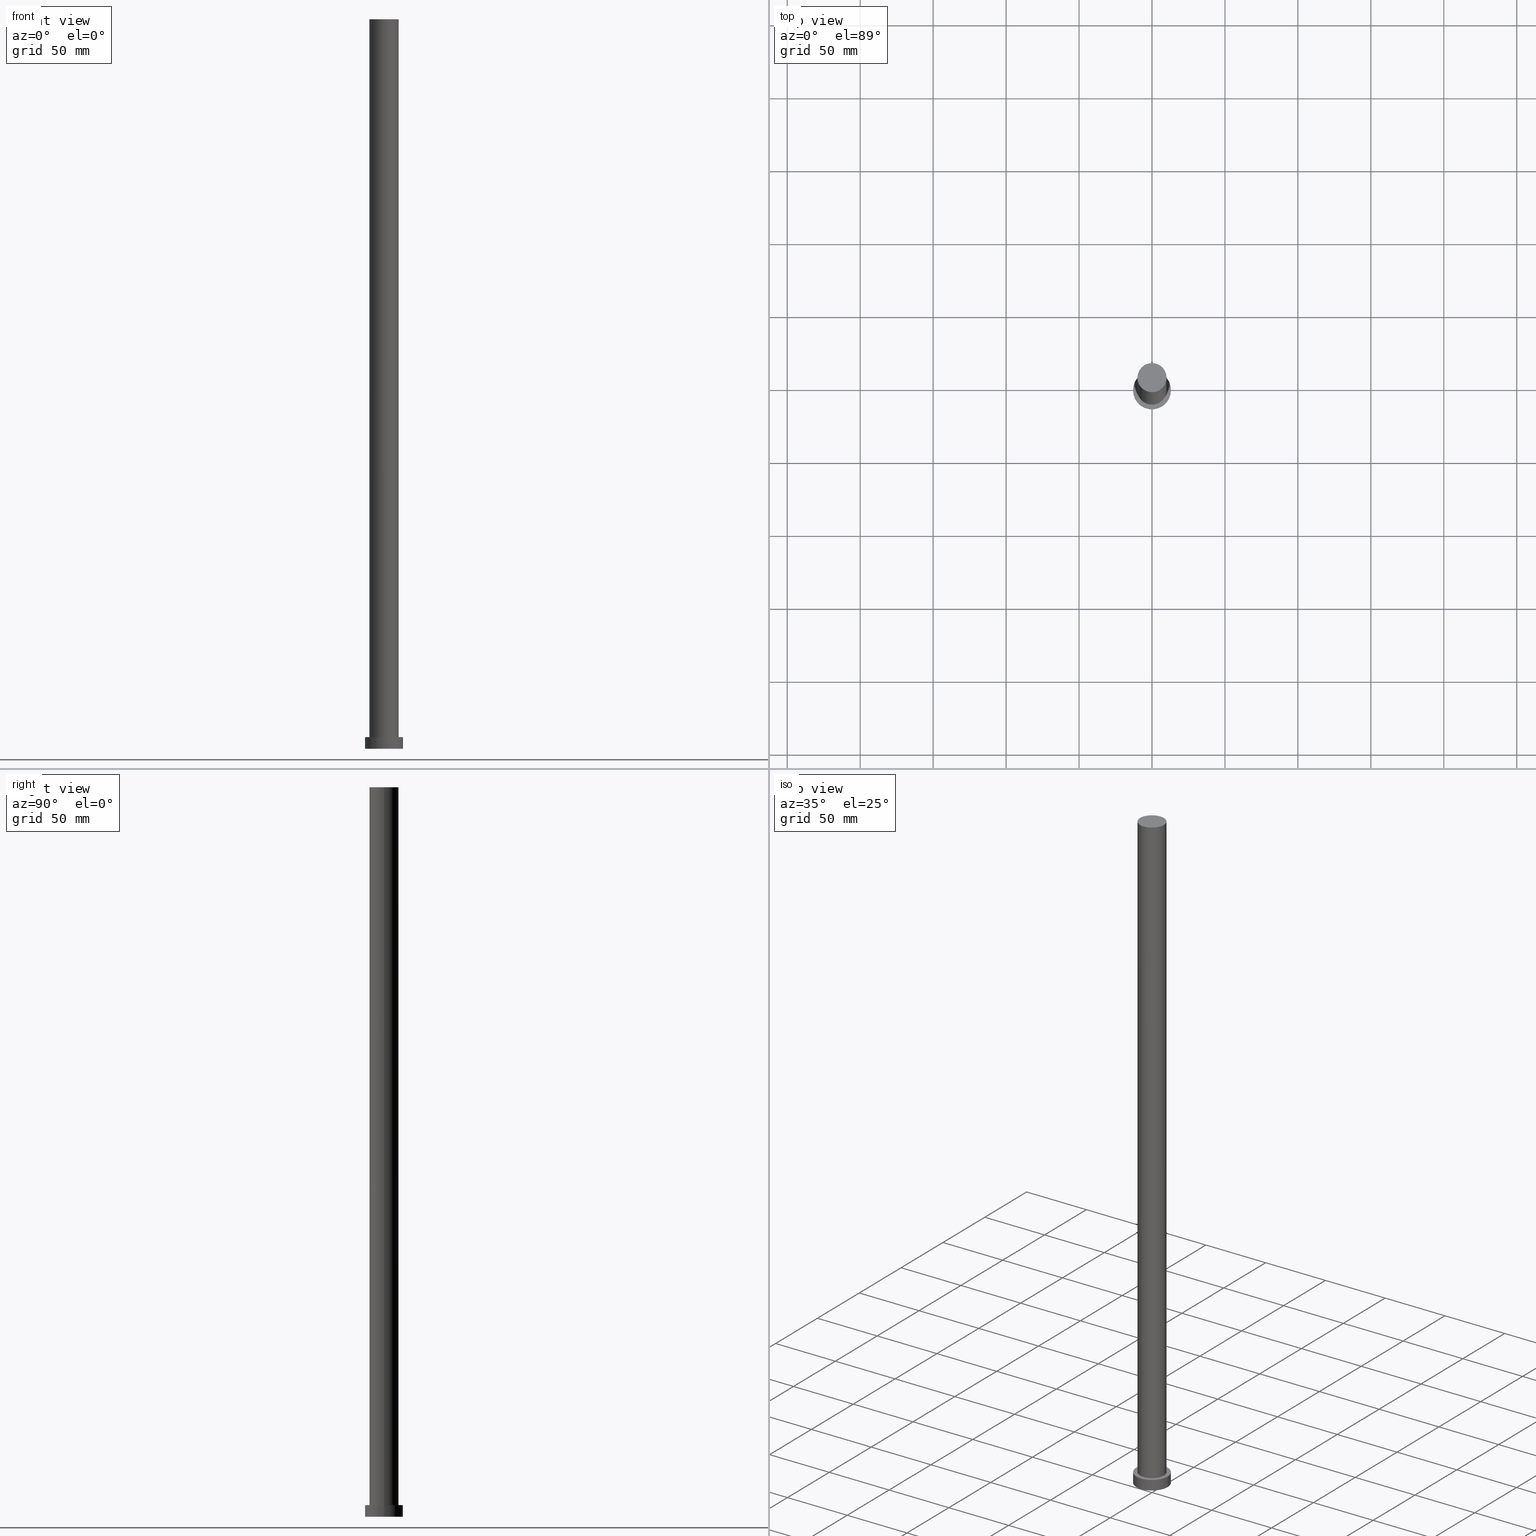
[diagram: canonical four-view strip — front | top / right | iso, engineering-drawing reading convention]
A machine part, canonical four-view strip (front | top / right | iso — engineering-drawing reading convention). The complete STEP part file that produces these views, byte-faithful:
ISO-10303-21;
HEADER;
FILE_DESCRIPTION (( 'STEP AP203' ),
    '1' );
FILE_NAME ('5269.STEP',
    '2023-02-13T07:53:37',
    ( '' ),
    ( '' ),
    'SwSTEP 2.0',
    'SolidWorks 2019',
    '' );
FILE_SCHEMA (( 'CONFIG_CONTROL_DESIGN' ));
ENDSEC;

DATA;
#1 = DIRECTION ( 'NONE',  ( 0.000000000000000000, 0.000000000000000000, 1.000000000000000000 ) ) ;
#2 = COORDINATED_UNIVERSAL_TIME_OFFSET ( 1, 0, .AHEAD. ) ;
#3 = VECTOR ( 'NONE', #120, 1000.000000000000000 ) ;
#4 = CC_DESIGN_PERSON_AND_ORGANIZATION_ASSIGNMENT ( #134, #114, ( #63 ) ) ;
#5 = FACE_OUTER_BOUND ( 'NONE', #209, .T. ) ;
#6 = CALENDAR_DATE ( 2023, 13, 2 ) ;
#7 = PRODUCT_DEFINITION_SHAPE ( 'NONE', 'NONE',  #13 ) ;
#8 = APPROVAL_STATUS ( 'not_yet_approved' ) ;
#9 = CYLINDRICAL_SURFACE ( 'NONE', #197, 13.00000000000000178 ) ;
#10 = DIRECTION ( 'NONE',  ( 1.000000000000000000, 0.000000000000000000, 0.000000000000000000 ) ) ;
#11 =( LENGTH_UNIT ( ) NAMED_UNIT ( * ) SI_UNIT ( .MILLI., .METRE. ) );
#12 = LOCAL_TIME ( 8, 53, 37.00000000000000000, #169 ) ;
#13 = PRODUCT_DEFINITION ( 'NEZN�M�', '', #63, #246 ) ;
#14 = PERSON_AND_ORGANIZATION ( #131, #18 ) ;
#15 = VERTEX_POINT ( 'NONE', #231 ) ;
#16 = CIRCLE ( 'NONE', #51, 10.00000000000000000 ) ;
#17 = EDGE_LOOP ( 'NONE', ( #193, #41, #80, #64 ) ) ;
#18 = ORGANIZATION ( 'NEUR�EN�', 'NEUR�EN�', '' ) ;
#19 = CC_DESIGN_DATE_AND_TIME_ASSIGNMENT ( #217, #72, ( #154 ) ) ;
#20 = EDGE_LOOP ( 'NONE', ( #139, #195 ) ) ;
#21 = ORIENTED_EDGE ( 'NONE', *, *, #151, .T. ) ;
#22 = ADVANCED_FACE ( 'NONE', ( #79 ), #59, .T. ) ;
#23 = CC_DESIGN_APPROVAL ( #165, ( #154 ) ) ;
#24 = DATE_AND_TIME ( #163, #69 ) ;
#25 = CARTESIAN_POINT ( 'NONE',  ( -10.00000000000000000, 0.000000000000000000, 500.0000000000000000 ) ) ;
#26 = DIRECTION ( 'NONE',  ( 1.000000000000000000, 0.000000000000000000, 0.000000000000000000 ) ) ;
#27 = CLOSED_SHELL ( 'NONE', ( #204, #171, #104, #210, #249, #22, #235 ) ) ;
#28 = AXIS2_PLACEMENT_3D ( 'NONE', #33, #175, #77 ) ;
#29 = DIRECTION ( 'NONE',  ( 1.000000000000000000, 0.000000000000000000, 0.000000000000000000 ) ) ;
#30 = CALENDAR_DATE ( 2023, 13, 2 ) ;
#31 = LOCAL_TIME ( 8, 53, 37.00000000000000000, #168 ) ;
#32 = PERSON_AND_ORGANIZATION ( #131, #18 ) ;
#33 = CARTESIAN_POINT ( 'NONE',  ( 0.000000000000000000, 0.000000000000000000, 500.0000000000000000 ) ) ;
#34 = AXIS2_PLACEMENT_3D ( 'NONE', #189, #67, #147 ) ;
#35 = ORIENTED_EDGE ( 'NONE', *, *, #160, .T. ) ;
#36 = DIRECTION ( 'NONE',  ( -1.000000000000000000, 0.000000000000000000, 0.000000000000000000 ) ) ;
#37 = CC_DESIGN_PERSON_AND_ORGANIZATION_ASSIGNMENT ( #106, #182, ( #181 ) ) ;
#38 = VERTEX_POINT ( 'NONE', #173 ) ;
#39 = CARTESIAN_POINT ( 'NONE',  ( 0.000000000000000000, 0.000000000000000000, 500.0000000000000000 ) ) ;
#40 = VECTOR ( 'NONE', #136, 1000.000000000000000 ) ;
#41 = ORIENTED_EDGE ( 'NONE', *, *, #115, .T. ) ;
#42 = EDGE_LOOP ( 'NONE', ( #205, #252, #35, #192 ) ) ;
#43 = DIRECTION ( 'NONE',  ( 0.000000000000000000, 0.000000000000000000, 1.000000000000000000 ) ) ;
#44 = DIRECTION ( 'NONE',  ( 1.000000000000000000, 0.000000000000000000, 0.000000000000000000 ) ) ;
#45 = CARTESIAN_POINT ( 'NONE',  ( 0.000000000000000000, 0.000000000000000000, 500.0000000000000000 ) ) ;
#46 = EDGE_CURVE ( 'NONE', #233, #38, #170, .T. ) ;
#47 = LINE ( 'NONE', #127, #218 ) ;
#48 = CARTESIAN_POINT ( 'NONE',  ( 13.00000000000000178, 1.592040838891559293E-15, 8.000000000000000000 ) ) ;
#49 = DATE_TIME_ROLE ( 'creation_date' ) ;
#50 = CIRCLE ( 'NONE', #253, 10.00000000000000000 ) ;
#51 = AXIS2_PLACEMENT_3D ( 'NONE', #45, #212, #128 ) ;
#52 = CARTESIAN_POINT ( 'NONE',  ( 10.00000000000000000, 1.224646799147353256E-15, 8.000000000000000000 ) ) ;
#53 = APPROVAL_ROLE ( '' ) ;
#54 = APPROVAL_STATUS ( 'not_yet_approved' ) ;
#55 = DIRECTION ( 'NONE',  ( -1.000000000000000000, 0.000000000000000000, 0.000000000000000000 ) ) ;
#56 = ORIENTED_EDGE ( 'NONE', *, *, #186, .T. ) ;
#57 = EDGE_CURVE ( 'NONE', #176, #15, #187, .T. ) ;
#58 = VERTEX_POINT ( 'NONE', #146 ) ;
#59 = CYLINDRICAL_SURFACE ( 'NONE', #236, 10.00000000000000000 ) ;
#60 = CIRCLE ( 'NONE', #121, 13.00000000000000178 ) ;
#61 = EDGE_CURVE ( 'NONE', #15, #176, #60, .T. ) ;
#62 = ORIENTED_EDGE ( 'NONE', *, *, #57, .T. ) ;
#63 = PRODUCT_DEFINITION_FORMATION_WITH_SPECIFIED_SOURCE ( 'LIBOVOLN�', '', #181, .NOT_KNOWN. ) ;
#64 = ORIENTED_EDGE ( 'NONE', *, *, #151, .F. ) ;
#65 = DIRECTION ( 'NONE',  ( 1.000000000000000000, 0.000000000000000000, 0.000000000000000000 ) ) ;
#66 = CC_DESIGN_DATE_AND_TIME_ASSIGNMENT ( #214, #49, ( #13 ) ) ;
#67 = DIRECTION ( 'NONE',  ( 0.000000000000000000, 0.000000000000000000, 1.000000000000000000 ) ) ;
#68 = APPROVAL_DATE_TIME ( #24, #129 ) ;
#69 = LOCAL_TIME ( 8, 53, 37.00000000000000000, #198 ) ;
#70 = CYLINDRICAL_SURFACE ( 'NONE', #194, 10.00000000000000000 ) ;
#71 = PERSON_AND_ORGANIZATION_ROLE ( 'classification_officer' ) ;
#72 = DATE_TIME_ROLE ( 'classification_date' ) ;
#73 = CARTESIAN_POINT ( 'NONE',  ( -10.00000000000000000, 0.000000000000000000, 500.0000000000000000 ) ) ;
#74 = APPROVAL_PERSON_ORGANIZATION ( #14, #165, #53 ) ;
#75 = EDGE_CURVE ( 'NONE', #208, #161, #16, .T. ) ;
#76 = DIRECTION ( 'NONE',  ( 0.000000000000000000, 0.000000000000000000, 1.000000000000000000 ) ) ;
#77 = DIRECTION ( 'NONE',  ( 1.000000000000000000, 0.000000000000000000, -0.000000000000000000 ) ) ;
#78 = DIRECTION ( 'NONE',  ( -0.000000000000000000, -0.000000000000000000, -1.000000000000000000 ) ) ;
#79 = FACE_OUTER_BOUND ( 'NONE', #124, .T. ) ;
#80 = ORIENTED_EDGE ( 'NONE', *, *, #156, .T. ) ;
#81 = CIRCLE ( 'NONE', #153, 10.00000000000000000 ) ;
#82 = ORIENTED_EDGE ( 'NONE', *, *, #57, .F. ) ;
#83 = DIRECTION ( 'NONE',  ( 1.000000000000000000, 0.000000000000000000, 0.000000000000000000 ) ) ;
#84 = CC_DESIGN_PERSON_AND_ORGANIZATION_ASSIGNMENT ( #137, #116, ( #63 ) ) ;
#85 = CYLINDRICAL_SURFACE ( 'NONE', #157, 13.00000000000000178 ) ;
#86 = PLANE ( 'NONE',  #34 ) ;
#87 = LOCAL_TIME ( 8, 53, 37.00000000000000000, #164 ) ;
#88 = APPROVAL_STATUS ( 'not_yet_approved' ) ;
#89 = UNCERTAINTY_MEASURE_WITH_UNIT (LENGTH_MEASURE( 1.000000000000000082E-05 ), #11, 'distance_accuracy_value', 'NONE');
#90 = DIRECTION ( 'NONE',  ( -0.000000000000000000, -0.000000000000000000, -1.000000000000000000 ) ) ;
#91 = CARTESIAN_POINT ( 'NONE',  ( 13.00000000000000178, 1.592040838891559293E-15, 0.000000000000000000 ) ) ;
#92 = APPROVAL_ROLE ( '' ) ;
#93 = FACE_OUTER_BOUND ( 'NONE', #17, .T. ) ;
#94 = APPROVAL_DATE_TIME ( #203, #165 ) ;
#95 = APPLICATION_CONTEXT ( 'configuration controlled 3d designs of mechanical parts and assemblies' ) ;
#96 = SECURITY_CLASSIFICATION_LEVEL ( 'unclassified' ) ;
#97 = PLANE ( 'NONE',  #28 ) ;
#98 = ADVANCED_BREP_SHAPE_REPRESENTATION ( '5269', ( #237, #221 ), #172 ) ;
#99 = DIRECTION ( 'NONE',  ( 0.000000000000000000, 0.000000000000000000, 1.000000000000000000 ) ) ;
#100 = PRODUCT_RELATED_PRODUCT_CATEGORY ( 'detail', '', ( #181 ) ) ;
#101 = CARTESIAN_POINT ( 'NONE',  ( 0.000000000000000000, 0.000000000000000000, 8.000000000000000000 ) ) ;
#102 = ORIENTED_EDGE ( 'NONE', *, *, #254, .T. ) ;
#103 = EDGE_LOOP ( 'NONE', ( #56, #178 ) ) ;
#104 = ADVANCED_FACE ( 'NONE', ( #200 ), #85, .T. ) ;
#105 = PERSON_AND_ORGANIZATION_ROLE ( 'creator' ) ;
#106 = PERSON_AND_ORGANIZATION ( #131, #18 ) ;
#107 = CARTESIAN_POINT ( 'NONE',  ( 0.000000000000000000, 0.000000000000000000, 500.0000000000000000 ) ) ;
#108 = CC_DESIGN_SECURITY_CLASSIFICATION ( #154, ( #63 ) ) ;
#109 = APPLICATION_PROTOCOL_DEFINITION ( 'international standard', 'config_control_design', 1994, #179 ) ;
#110 = DIRECTION ( 'NONE',  ( -0.000000000000000000, -0.000000000000000000, -1.000000000000000000 ) ) ;
#111 = DIRECTION ( 'NONE',  ( -1.000000000000000000, 0.000000000000000000, 0.000000000000000000 ) ) ;
#112 = MECHANICAL_CONTEXT ( 'NONE', #95, 'mechanical' ) ;
#113 = FACE_BOUND ( 'NONE', #20, .T. ) ;
#114 = PERSON_AND_ORGANIZATION_ROLE ( 'design_supplier' ) ;
#115 = EDGE_CURVE ( 'NONE', #208, #207, #47, .T. ) ;
#116 = PERSON_AND_ORGANIZATION_ROLE ( 'creator' ) ;
#117 = DIRECTION ( 'NONE',  ( 0.000000000000000000, 0.000000000000000000, 1.000000000000000000 ) ) ;
#118 = APPROVAL_PERSON_ORGANIZATION ( #184, #129, #238 ) ;
#119 = ORIENTED_EDGE ( 'NONE', *, *, #115, .F. ) ;
#120 = DIRECTION ( 'NONE',  ( -0.000000000000000000, -0.000000000000000000, -1.000000000000000000 ) ) ;
#121 = AXIS2_PLACEMENT_3D ( 'NONE', #224, #1, #44 ) ;
#122 = ORIENTED_EDGE ( 'NONE', *, *, #248, .F. ) ;
#123 = APPROVAL_PERSON_ORGANIZATION ( #185, #135, #92 ) ;
#124 = EDGE_LOOP ( 'NONE', ( #119, #180, #21, #102 ) ) ;
#125 = ORIENTED_EDGE ( 'NONE', *, *, #226, .T. ) ;
#126 = LOCAL_TIME ( 8, 53, 37.00000000000000000, #2 ) ;
#127 = CARTESIAN_POINT ( 'NONE',  ( 10.00000000000000000, 1.224646799147353256E-15, 500.0000000000000000 ) ) ;
#128 = DIRECTION ( 'NONE',  ( 1.000000000000000000, 0.000000000000000000, 0.000000000000000000 ) ) ;
#129 = APPROVAL ( #88, 'NEUR�EN�' ) ;
#130 = FACE_OUTER_BOUND ( 'NONE', #255, .T. ) ;
#131 = PERSON ( 'NEUR�EN�', 'NEUR�EN�', 'NEUR�EN�', ('NEUR�EN�'), ('NEUR�EN�'), ('NEUR�EN�') ) ;
#132 = LINE ( 'NONE', #152, #232 ) ;
#133 = DIRECTION ( 'NONE',  ( 0.000000000000000000, 0.000000000000000000, 1.000000000000000000 ) ) ;
#134 = PERSON_AND_ORGANIZATION ( #131, #18 ) ;
#135 = APPROVAL ( #8, 'NEUR�EN�' ) ;
#136 = DIRECTION ( 'NONE',  ( -0.000000000000000000, -0.000000000000000000, -1.000000000000000000 ) ) ;
#137 = PERSON_AND_ORGANIZATION ( #131, #18 ) ;
#138 = CC_DESIGN_APPROVAL ( #135, ( #63 ) ) ;
#139 = ORIENTED_EDGE ( 'NONE', *, *, #254, .F. ) ;
#140 = DIRECTION ( 'NONE',  ( -0.000000000000000000, -0.000000000000000000, -1.000000000000000000 ) ) ;
#141 = CC_DESIGN_PERSON_AND_ORGANIZATION_ASSIGNMENT ( #32, #71, ( #154 ) ) ;
#142 = LINE ( 'NONE', #25, #3 ) ;
#143 = AXIS2_PLACEMENT_3D ( 'NONE', #250, #76, #230 ) ;
#144 =( NAMED_UNIT ( * ) PLANE_ANGLE_UNIT ( ) SI_UNIT ( $, .RADIAN. ) );
#145 =( NAMED_UNIT ( * ) SI_UNIT ( $, .STERADIAN. ) SOLID_ANGLE_UNIT ( ) );
#146 = CARTESIAN_POINT ( 'NONE',  ( -10.00000000000000000, 0.000000000000000000, 8.000000000000000000 ) ) ;
#147 = DIRECTION ( 'NONE',  ( 1.000000000000000000, 0.000000000000000000, -0.000000000000000000 ) ) ;
#148 = PERSON_AND_ORGANIZATION ( #131, #18 ) ;
#149 = AXIS2_PLACEMENT_3D ( 'NONE', #239, #133, #10 ) ;
#150 = DIRECTION ( 'NONE',  ( 1.000000000000000000, 0.000000000000000000, 0.000000000000000000 ) ) ;
#151 = EDGE_CURVE ( 'NONE', #161, #58, #142, .T. ) ;
#152 = CARTESIAN_POINT ( 'NONE',  ( -13.00000000000000178, 0.000000000000000000, 8.000000000000000000 ) ) ;
#153 = AXIS2_PLACEMENT_3D ( 'NONE', #190, #117, #29 ) ;
#154 = SECURITY_CLASSIFICATION ( '', '', #96 ) ;
#155 = ORIENTED_EDGE ( 'NONE', *, *, #61, .F. ) ;
#156 = EDGE_CURVE ( 'NONE', #207, #58, #81, .T. ) ;
#157 = AXIS2_PLACEMENT_3D ( 'NONE', #101, #78, #36 ) ;
#158 = ORIENTED_EDGE ( 'NONE', *, *, #248, .T. ) ;
#159 = AXIS2_PLACEMENT_3D ( 'NONE', #223, #99, #83 ) ;
#160 = EDGE_CURVE ( 'NONE', #233, #15, #132, .T. ) ;
#161 = VERTEX_POINT ( 'NONE', #73 ) ;
#162 = CARTESIAN_POINT ( 'NONE',  ( 0.000000000000000000, 0.000000000000000000, 0.000000000000000000 ) ) ;
#163 = CALENDAR_DATE ( 2023, 13, 2 ) ;
#164 = COORDINATED_UNIVERSAL_TIME_OFFSET ( 1, 0, .AHEAD. ) ;
#165 = APPROVAL ( #54, 'NEUR�EN�' ) ;
#166 = CALENDAR_DATE ( 2023, 13, 2 ) ;
#167 = DIRECTION ( 'NONE',  ( -0.000000000000000000, -0.000000000000000000, -1.000000000000000000 ) ) ;
#168 = COORDINATED_UNIVERSAL_TIME_OFFSET ( 1, 0, .AHEAD. ) ;
#169 = COORDINATED_UNIVERSAL_TIME_OFFSET ( 1, 0, .AHEAD. ) ;
#170 = CIRCLE ( 'NONE', #143, 13.00000000000000178 ) ;
#171 = ADVANCED_FACE ( 'NONE', ( #130 ), #9, .T. ) ;
#172 =( GEOMETRIC_REPRESENTATION_CONTEXT ( 3 ) GLOBAL_UNCERTAINTY_ASSIGNED_CONTEXT ( ( #89 ) ) GLOBAL_UNIT_ASSIGNED_CONTEXT ( ( #11, #144, #145 ) ) REPRESENTATION_CONTEXT ( 'NONE', 'WORKASPACE' ) );
#173 = CARTESIAN_POINT ( 'NONE',  ( 13.00000000000000178, 1.592040838891559293E-15, 8.000000000000000000 ) ) ;
#174 = CARTESIAN_POINT ( 'NONE',  ( -13.00000000000000178, 0.000000000000000000, 8.000000000000000000 ) ) ;
#175 = DIRECTION ( 'NONE',  ( 0.000000000000000000, 0.000000000000000000, 1.000000000000000000 ) ) ;
#176 = VERTEX_POINT ( 'NONE', #91 ) ;
#177 = CC_DESIGN_PERSON_AND_ORGANIZATION_ASSIGNMENT ( #148, #105, ( #13 ) ) ;
#178 = ORIENTED_EDGE ( 'NONE', *, *, #75, .T. ) ;
#179 = APPLICATION_CONTEXT ( 'configuration controlled 3d designs of mechanical parts and assemblies' ) ;
#180 = ORIENTED_EDGE ( 'NONE', *, *, #186, .F. ) ;
#181 = PRODUCT ( '5269', '5269', '', ( #112 ) ) ;
#182 = PERSON_AND_ORGANIZATION_ROLE ( 'design_owner' ) ;
#183 = AXIS2_PLACEMENT_3D ( 'NONE', #202, #240, #188 ) ;
#184 = PERSON_AND_ORGANIZATION ( #131, #18 ) ;
#185 = PERSON_AND_ORGANIZATION ( #131, #18 ) ;
#186 = EDGE_CURVE ( 'NONE', #161, #208, #241, .T. ) ;
#187 = CIRCLE ( 'NONE', #191, 13.00000000000000178 ) ;
#188 = DIRECTION ( 'NONE',  ( 1.000000000000000000, 0.000000000000000000, -0.000000000000000000 ) ) ;
#189 = CARTESIAN_POINT ( 'NONE',  ( 0.000000000000000000, 0.000000000000000000, 8.000000000000000000 ) ) ;
#190 = CARTESIAN_POINT ( 'NONE',  ( 0.000000000000000000, 0.000000000000000000, 8.000000000000000000 ) ) ;
#191 = AXIS2_PLACEMENT_3D ( 'NONE', #251, #206, #26 ) ;
#192 = ORIENTED_EDGE ( 'NONE', *, *, #61, .T. ) ;
#193 = ORIENTED_EDGE ( 'NONE', *, *, #75, .F. ) ;
#194 = AXIS2_PLACEMENT_3D ( 'NONE', #107, #167, #111 ) ;
#195 = ORIENTED_EDGE ( 'NONE', *, *, #156, .F. ) ;
#196 = ORIENTED_EDGE ( 'NONE', *, *, #46, .T. ) ;
#197 = AXIS2_PLACEMENT_3D ( 'NONE', #216, #225, #219 ) ;
#198 = COORDINATED_UNIVERSAL_TIME_OFFSET ( 1, 0, .AHEAD. ) ;
#199 = DIRECTION ( 'NONE',  ( 0.000000000000000000, 0.000000000000000000, 1.000000000000000000 ) ) ;
#200 = FACE_OUTER_BOUND ( 'NONE', #42, .T. ) ;
#201 = CARTESIAN_POINT ( 'NONE',  ( 0.000000000000000000, 0.000000000000000000, 8.000000000000000000 ) ) ;
#202 = CARTESIAN_POINT ( 'NONE',  ( 0.000000000000000000, 0.000000000000000000, 0.000000000000000000 ) ) ;
#203 = DATE_AND_TIME ( #30, #12 ) ;
#204 = ADVANCED_FACE ( 'NONE', ( #93 ), #70, .T. ) ;
#205 = ORIENTED_EDGE ( 'NONE', *, *, #226, .F. ) ;
#206 = DIRECTION ( 'NONE',  ( 0.000000000000000000, 0.000000000000000000, 1.000000000000000000 ) ) ;
#207 = VERTEX_POINT ( 'NONE', #52 ) ;
#208 = VERTEX_POINT ( 'NONE', #244 ) ;
#209 = EDGE_LOOP ( 'NONE', ( #196, #158 ) ) ;
#210 = ADVANCED_FACE ( 'NONE', ( #113, #5 ), #86, .T. ) ;
#211 = PLANE ( 'NONE',  #183 ) ;
#212 = DIRECTION ( 'NONE',  ( 0.000000000000000000, 0.000000000000000000, 1.000000000000000000 ) ) ;
#213 = LINE ( 'NONE', #48, #40 ) ;
#214 = DATE_AND_TIME ( #6, #126 ) ;
#215 = APPLICATION_PROTOCOL_DEFINITION ( 'international standard', 'config_control_design', 1994, #95 ) ;
#216 = CARTESIAN_POINT ( 'NONE',  ( 0.000000000000000000, 0.000000000000000000, 8.000000000000000000 ) ) ;
#217 = DATE_AND_TIME ( #220, #31 ) ;
#218 = VECTOR ( 'NONE', #110, 1000.000000000000000 ) ;
#219 = DIRECTION ( 'NONE',  ( -1.000000000000000000, 0.000000000000000000, 0.000000000000000000 ) ) ;
#220 = CALENDAR_DATE ( 2023, 13, 2 ) ;
#221 = AXIS2_PLACEMENT_3D ( 'NONE', #162, #43, #150 ) ;
#222 = APPROVAL_DATE_TIME ( #247, #135 ) ;
#223 = CARTESIAN_POINT ( 'NONE',  ( 0.000000000000000000, 0.000000000000000000, 8.000000000000000000 ) ) ;
#224 = CARTESIAN_POINT ( 'NONE',  ( 0.000000000000000000, 0.000000000000000000, 0.000000000000000000 ) ) ;
#225 = DIRECTION ( 'NONE',  ( -0.000000000000000000, -0.000000000000000000, -1.000000000000000000 ) ) ;
#226 = EDGE_CURVE ( 'NONE', #38, #176, #213, .T. ) ;
#227 = FACE_OUTER_BOUND ( 'NONE', #103, .T. ) ;
#228 = CC_DESIGN_APPROVAL ( #129, ( #13 ) ) ;
#229 = ORIENTED_EDGE ( 'NONE', *, *, #160, .F. ) ;
#230 = DIRECTION ( 'NONE',  ( 1.000000000000000000, 0.000000000000000000, 0.000000000000000000 ) ) ;
#231 = CARTESIAN_POINT ( 'NONE',  ( -13.00000000000000178, 0.000000000000000000, 0.000000000000000000 ) ) ;
#232 = VECTOR ( 'NONE', #90, 1000.000000000000000 ) ;
#233 = VERTEX_POINT ( 'NONE', #174 ) ;
#234 = EDGE_LOOP ( 'NONE', ( #155, #82 ) ) ;
#235 = ADVANCED_FACE ( 'NONE', ( #227 ), #97, .T. ) ;
#236 = AXIS2_PLACEMENT_3D ( 'NONE', #39, #140, #55 ) ;
#237 = MANIFOLD_SOLID_BREP ( 'P�idat vysunut�m3', #27 ) ;
#238 = APPROVAL_ROLE ( '' ) ;
#239 = CARTESIAN_POINT ( 'NONE',  ( 0.000000000000000000, 0.000000000000000000, 500.0000000000000000 ) ) ;
#240 = DIRECTION ( 'NONE',  ( 0.000000000000000000, 0.000000000000000000, 1.000000000000000000 ) ) ;
#241 = CIRCLE ( 'NONE', #149, 10.00000000000000000 ) ;
#242 = FACE_OUTER_BOUND ( 'NONE', #234, .T. ) ;
#243 = CIRCLE ( 'NONE', #159, 13.00000000000000178 ) ;
#244 = CARTESIAN_POINT ( 'NONE',  ( 10.00000000000000000, 1.224646799147353256E-15, 500.0000000000000000 ) ) ;
#245 = SHAPE_DEFINITION_REPRESENTATION ( #7, #98 ) ;
#246 = DESIGN_CONTEXT ( 'detailed design', #179, 'design' ) ;
#247 = DATE_AND_TIME ( #166, #87 ) ;
#248 = EDGE_CURVE ( 'NONE', #38, #233, #243, .T. ) ;
#249 = ADVANCED_FACE ( 'NONE', ( #242 ), #211, .F. ) ;
#250 = CARTESIAN_POINT ( 'NONE',  ( 0.000000000000000000, 0.000000000000000000, 8.000000000000000000 ) ) ;
#251 = CARTESIAN_POINT ( 'NONE',  ( 0.000000000000000000, 0.000000000000000000, 0.000000000000000000 ) ) ;
#252 = ORIENTED_EDGE ( 'NONE', *, *, #46, .F. ) ;
#253 = AXIS2_PLACEMENT_3D ( 'NONE', #201, #199, #65 ) ;
#254 = EDGE_CURVE ( 'NONE', #58, #207, #50, .T. ) ;
#255 = EDGE_LOOP ( 'NONE', ( #122, #125, #62, #229 ) ) ;
ENDSEC;
END-ISO-10303-21;
